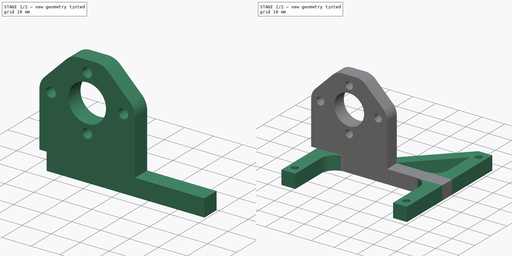
[diagram: build sequence overview — one tinted view per stage of 2, left to right]
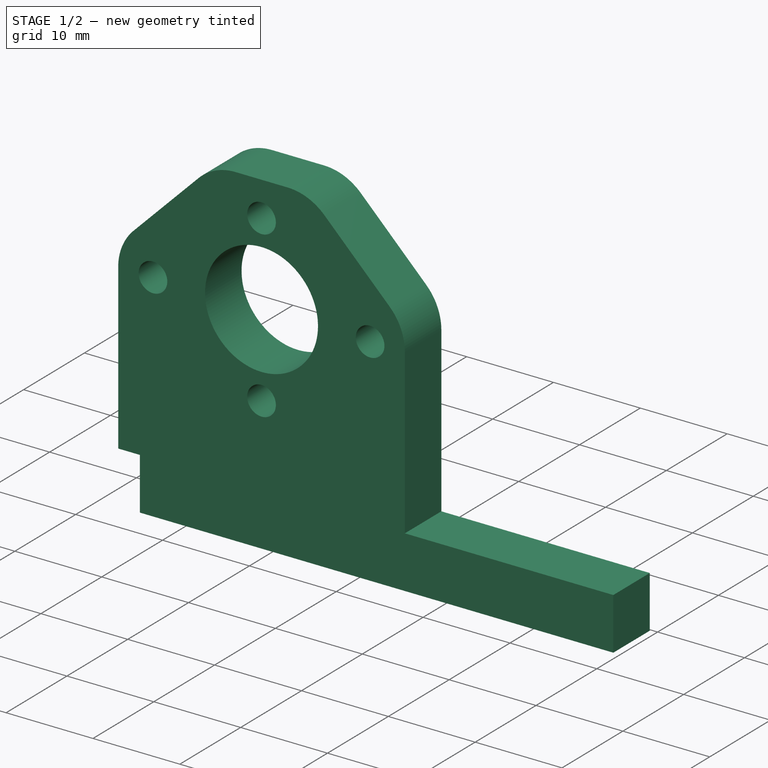
[diagram: stage 1 of 2 — iso view after this stage's code; geometry added in this stage tinted green]
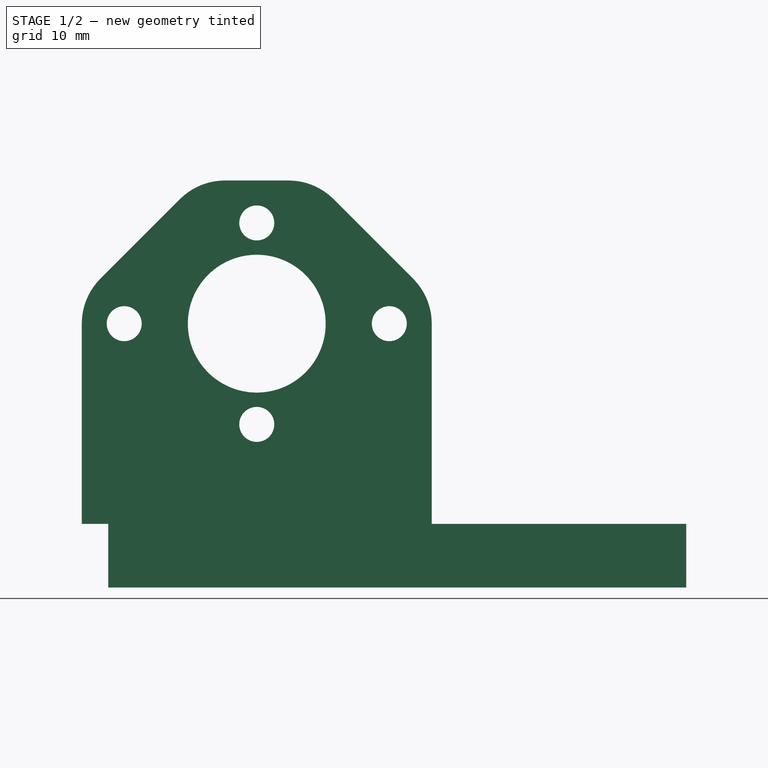
[diagram: stage 1 of 2 — front view after this stage's code; geometry added in this stage tinted green]
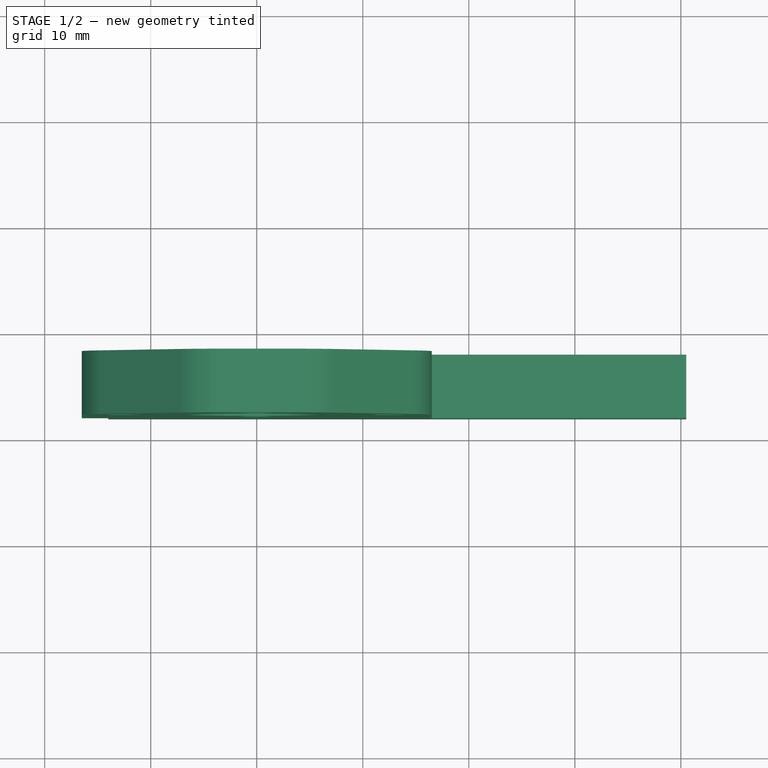
[diagram: stage 1 of 2 — top view after this stage's code; geometry added in this stage tinted green]
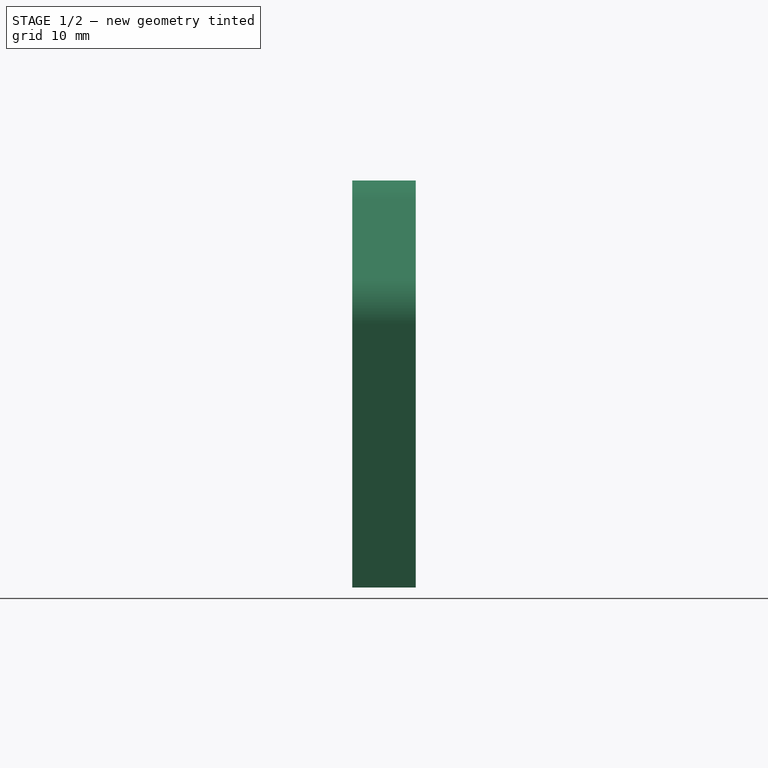
[diagram: stage 1 of 2 — right view after this stage's code; geometry added in this stage tinted green]
FCSTD DOCUMENT  (FreeCAD 0.20R29177 +426 (Git))
Label: motorMountBrushlessR17.50
License: All rights reserved
LicenseURL: http://en.wikipedia.org/wiki/All_rights_reserved
objects: Sketcher::SketchObject×3, PartDesign::Pad×3, PartDesign::Body×2, Spreadsheet::Sheet×1
note: 11 computed .brp shape members not serialized (recipe doc carries the construction recipe); baked Part::Feature solids carry a one-line shape summary decoded from their .brp

FEATURE [Sketcher::SketchObject] Sketch
  AttachmentOffset = pos=(0,24.88,-25) rot=(0,0,1;0rad)
  FullyConstrained = true
  MapMode = 5
  Placement = pos=(0,25,24.88) rot=(1,0,0;1.5708rad)
  Support = -> [XZ_Plane]
  expr: .AttachmentOffset.Base.y = Spreadsheet.transmissionBlockHeight
  expr: .AttachmentOffset.Base.z = -Spreadsheet.supportCylLen
  expr: Constraints[12] = Spreadsheet.motorCenterHoleR
  expr: Constraints[24] = Spreadsheet.transmissionBlockHeight
  expr: Constraints[25] = Spreadsheet.pad
  expr: Constraints[26] = Spreadsheet.underMountScrewHoleFarToSide
  expr: Constraints[28] = Spreadsheet.underMountScrewHoleToSideShortToSide
  expr: Constraints[37] = Spreadsheet.screwToSideFar
  expr: Constraints[38] = Spreadsheet.screwToSideFar
  expr: Constraints[43] = Spreadsheet.pad
  expr: Constraints[46] = Spreadsheet.pad
  expr: Constraints[4] = Spreadsheet.horScrewHoleDist
  expr: Constraints[5] = Spreadsheet.verScrewHoleDist
  expr: Constraints[9] = Spreadsheet.loseScrewHoleR
  sketch-geometry (19):
    g0: Circle CenterX=-12.5 CenterY=0 CenterZ=0 NormalX=0 NormalY=0 NormalZ=1 AngleXU=0 Radius=1.65
    g1: Circle CenterX=12.5 CenterY=0 CenterZ=0 NormalX=0 NormalY=0 NormalZ=1 AngleXU=0 Radius=1.65
    g2: Circle CenterX=0 CenterY=9.5 CenterZ=0 NormalX=0 NormalY=0 NormalZ=1 AngleXU=0 Radius=1.65
    g3: Circle CenterX=0 CenterY=-9.5 CenterZ=0 NormalX=0 NormalY=0 NormalZ=1 AngleXU=0 Radius=1.65
    g4: LineSegment StartX=-3 StartY=13.5 StartZ=0 EndX=3 EndY=13.5 EndZ=0
    g5: LineSegment StartX=16.5 StartY=7e-16 StartZ=0 EndX=16.5 EndY=-18.88 EndZ=0
    g6: LineSegment StartX=-16.5 StartY=-18.88 StartZ=0 EndX=-16.5 EndY=0 EndZ=0
    g7: Circle CenterX=0 CenterY=0 CenterZ=0 NormalX=0 NormalY=0 NormalZ=1 AngleXU=0 Radius=6.5
    g8: LineSegment StartX=-14 StartY=-18.88 StartZ=0 EndX=-16.5 EndY=-18.88 EndZ=0
    g9: LineSegment StartX=40.5 StartY=-18.88 StartZ=0 EndX=40.5 EndY=-24.88 EndZ=0
    g10: LineSegment StartX=40.5 StartY=-24.88 StartZ=0 EndX=-14 EndY=-24.88 EndZ=0
    g11: LineSegment StartX=-14 StartY=-24.88 StartZ=0 EndX=-14 EndY=-18.88 EndZ=0
    g12: LineSegment StartX=16.5 StartY=-18.88 StartZ=0 EndX=40.5 EndY=-18.88 EndZ=0
    g13: LineSegment StartX=-14.7426 StartY=4.24264 StartZ=0 EndX=-7.24264 EndY=11.7426 EndZ=0
    g14: LineSegment StartX=7.24264 StartY=11.7426 StartZ=0 EndX=14.7426 EndY=4.24264 EndZ=0
    g15: ArcOfCircle CenterX=-10.5 CenterY=-7e-16 CenterZ=0 NormalX=0 NormalY=0 NormalZ=1 AngleXU=0 Radius=6 StartAngle=2.35619 EndAngle=3.14159
    g16: ArcOfCircle CenterX=3 CenterY=7.5 CenterZ=0 NormalX=0 NormalY=0 NormalZ=1 AngleXU=0 Radius=6 StartAngle=0.785398 EndAngle=1.5708
    g17: ArcOfCircle CenterX=-3 CenterY=7.5 CenterZ=0 NormalX=0 NormalY=0 NormalZ=1 AngleXU=0 Radius=6 StartAngle=1.5708 EndAngle=2.35619
    g18: ArcOfCircle CenterX=10.5 CenterY=7e-16 CenterZ=0 NormalX=0 NormalY=0 NormalZ=1 AngleXU=0 Radius=6 StartAngle=0 EndAngle=0.785398
  constraints (47):
    c: PointOnObject(g0,g-1)
    c: PointOnObject(g2,g-2)
    c: Symmetric(g1,g0,g-1)
    c: Symmetric(g3,g2,g-1)
    c: DistanceX(g0,g1) = 25
    c: DistanceY(g3,g2) = 19
    c: Equal(g2,g0)
    c: Equal(g2,g3)
    c: Equal(g2,g1)
    c: Radius(g2) = 1.65
    c: Vertical(g5)
    c: Coincident(g7,g-1)
    c: Radius(g7) = 6.5
    c: Coincident(g12,g9)
    c: Coincident(g9,g10)
    c: Coincident(g10,g11)
    c: Coincident(g11,g8)
    c: Horizontal(g8)
    c: Vertical(g9)
    c: Vertical(g11)
    c: Coincident(g8,g6)
    c: Coincident(g12,g5)
    c: Symmetric(g5,g6,g-2)
    c: Horizontal(g12)
    c: DistanceY(g9,g7) = 24.88
    c: DistanceY(g9,g9) = 6
    c: DistanceX(g7,g9) = 40.5
    c: Horizontal(g10)
    c: DistanceX(g10,g7) = 14
    c: Tangent(g13,g15) = 1.5708
    c: Tangent(g6,g15) = 1.5708
    c: Tangent(g4,g16) = 1.5708
    c: Tangent(g14,g16) = 1.5708
    c: Tangent(g4,g17) = 1.5708
    c: Tangent(g13,g17) = 1.5708
    c: Tangent(g14,g18) = 1.5708
    c: Tangent(g5,g18) = 1.5708
    c: DistanceX(g1,g5) = 4
    c: DistanceY(g2,g4) = 4
    c: Symmetric(g4,g4,g-2)
    c: Equal(g17,g16)
    c: Equal(g17,g18)
    c: Equal(g17,g15)
    c: Radius(g17) = 6
    c: Symmetric(g5,g6,g-2)
    c: PointOnObject(g5,g-1)
    c: DistanceX(g4,g4) = 6
FEATURE [Spreadsheet::Sheet] Spreadsheet
  cells = A2=horScrewHoleDist; B2(horScrewHoleDist)=25; A3=verScrewHoleDist; B3(verScrewHoleDist)=19; A4=loseScrewHoleR; B4(loseScrewHoleR)=1.65; A5=motorR; B5(motorR)==35 / 2; A6=motorCenterHoleR; B6(motorCenterHoleR)=6.5; A7=underMountScrewHoleToSideShort; B7(underMountScrewHoleToSideShort)==B9 / 2 + B13; A8=underMountScrewHoleFar; B8(underMountScrewHoleFar)==B9 / 2 + B10 + B9 + B13; A9=transmissionBlockSide; B9(transmissionBlockSide)=18; A10=transmssionBlockCenterSpacing; B10(transmssionBlockCenterSpacing)=8.5; A11=transmissionBlockHeight; B11(transmissionBlockHeight)=24.88; A13=screwToSideTBlock; B13(screwToSideTBlock)=2.5; C13=2 is 1 mm short, 3 is 1 mm too wide.; A14=screwToSideFar; B14(screwToSideFar)==B28 + 1; A16=pad; B16(pad)==B28 * 2; A18=motorConnScrewDist; B18(motorConnScrewDist)=45; A21=underMountScrewHoleToSideShortToSide; B21(underMountScrewHoleToSideShortToSide)==B7 + B13; C21=underMountScrewHoleToSideShort + screwToSide; A22=underMountScrewHoleFarToSide; B22(underMountScrewHoleFarToSide)==B8 + B13; A24=screwTight; B24(screwTight)=1.4; A26=supportCylLen; B26(supportCylLen)=25; A28=screwToSide; B28(screwToSide)=3
FEATURE [PartDesign::Pad] Pad
  Direction = (0,-1,-2e-16)
  Length = 6
  Length2 = 10
  Midplane = true
  Placement = pos=(0,0,0) rot=(1,0,0;1.5708rad)
  Profile = -> Sketch
  ReferenceAxis = -> Sketch [N_Axis]
  Type = 0
  expr: Length = Spreadsheet.pad
FEATURE [PartDesign::Body] Body
  Group = -> [Sketch,Pad,Sketch002,Pad001]
  Origin = -> Origin
  Tip = -> Pad001
FEATURE [Sketcher::SketchObject] Sketch003
  AttachmentOffset = pos=(0,24.88,-25) rot=(0,0,1;0rad)
  FullyConstrained = true
  MapMode = 5
  Placement = pos=(0,25,24.88) rot=(1,0,0;1.5708rad)
  Support = -> [XZ_Plane]
  expr: .AttachmentOffset.Base.y = Spreadsheet.transmissionBlockHeight
  expr: .AttachmentOffset.Base.z = -Spreadsheet.supportCylLen
  expr: Constraints[11] = Spreadsheet.motorCenterHoleR
  expr: Constraints[27] = Spreadsheet.loseScrewHoleR + 2
  expr: Constraints[4] = Spreadsheet.horScrewHoleDist
  expr: Constraints[5] = Spreadsheet.verScrewHoleDist
  expr: Constraints[9] = Spreadsheet.loseScrewHoleR
  sketch-geometry (13):
    g0: Circle CenterX=-12.5 CenterY=0 CenterZ=0 NormalX=0 NormalY=0 NormalZ=1 AngleXU=0 Radius=1.65
    g1: Circle CenterX=12.5 CenterY=0 CenterZ=0 NormalX=0 NormalY=0 NormalZ=1 AngleXU=0 Radius=1.65
    g2: Circle CenterX=0 CenterY=9.5 CenterZ=0 NormalX=0 NormalY=0 NormalZ=1 AngleXU=0 Radius=1.65
    g3: Circle CenterX=0 CenterY=-9.5 CenterZ=0 NormalX=0 NormalY=0 NormalZ=1 AngleXU=0 Radius=1.65
    g4: Circle CenterX=0 CenterY=0 CenterZ=0 NormalX=0 NormalY=0 NormalZ=1 AngleXU=0 Radius=6.5
    g5: LineSegment StartX=-14.7086 StartY=2.90599 StartZ=0 EndX=-2.20855 EndY=12.406 EndZ=0
    g6: LineSegment StartX=2.20855 StartY=12.406 StartZ=0 EndX=14.7086 EndY=2.90599 EndZ=0
    g7: LineSegment StartX=-2.20855 StartY=-12.406 StartZ=0 EndX=-14.7086 EndY=-2.90599 EndZ=0
    g8: LineSegment StartX=2.20855 StartY=-12.406 StartZ=0 EndX=14.7086 EndY=-2.90599 EndZ=0
    g9: ArcOfCircle CenterX=0 CenterY=-9.5 CenterZ=0 NormalX=0 NormalY=0 NormalZ=1 AngleXU=0 Radius=3.65 StartAngle=4.06252 EndAngle=5.36226
    g10: ArcOfCircle CenterX=-12.5 CenterY=0 CenterZ=0 NormalX=0 NormalY=0 NormalZ=1 AngleXU=0 Radius=3.65 StartAngle=2.22067 EndAngle=4.06252
    g11: ArcOfCircle CenterX=12.5 CenterY=0 CenterZ=0 NormalX=0 NormalY=0 NormalZ=1 AngleXU=0 Radius=3.65 StartAngle=5.36226 EndAngle=7.20411
    g12: ArcOfCircle CenterX=0 CenterY=9.5 CenterZ=0 NormalX=0 NormalY=0 NormalZ=1 AngleXU=0 Radius=3.65 StartAngle=0.920926 EndAngle=2.22067
  constraints (28):
    c: PointOnObject(g0,g-1)
    c: PointOnObject(g2,g-2)
    c: Symmetric(g1,g0,g-1)
    c: Symmetric(g3,g2,g-1)
    c: DistanceX(g0,g1) = 25
    c: DistanceY(g3,g2) = 19
    c: Equal(g2,g0)
    c: Equal(g2,g3)
    c: Equal(g2,g1)
    c: Radius(g2) = 1.65
    c: Coincident(g4,g-1)
    c: Radius(g4) = 6.5
    c: Tangent(g7,g9) = 1.5708
    c: Tangent(g8,g9) = -1.5708
    c: Tangent(g7,g10) = 1.5708
    c: Tangent(g5,g10) = 1.5708
    c: Tangent(g6,g11) = 1.5708
    c: Tangent(g8,g11) = -1.5708
    c: Coincident(g11,g1)
    c: Coincident(g10,g0)
    c: Coincident(g9,g3)
    c: Tangent(g5,g12) = 1.5708
    c: Tangent(g6,g12) = 1.5708
    c: Coincident(g12,g2)
    c: Equal(g12,g10)
    c: Equal(g12,g11)
    c: Equal(g12,g9)
    c: Radius(g12) = 3.65
FEATURE [PartDesign::Pad] Pad002
  Direction = (0,-1,-2e-16)
  Length = 3
  Length2 = 10
  Midplane = true
  Placement = pos=(0,0,0) rot=(1,0,0;1.5708rad)
  Profile = -> Sketch003
  ReferenceAxis = -> Sketch003 [N_Axis]
  Type = 0
  expr: Length = 3
FEATURE [PartDesign::Body] Body001
  Group = -> [Sketch003,Pad002]
  Origin = -> Origin001
  Tip = -> Pad002
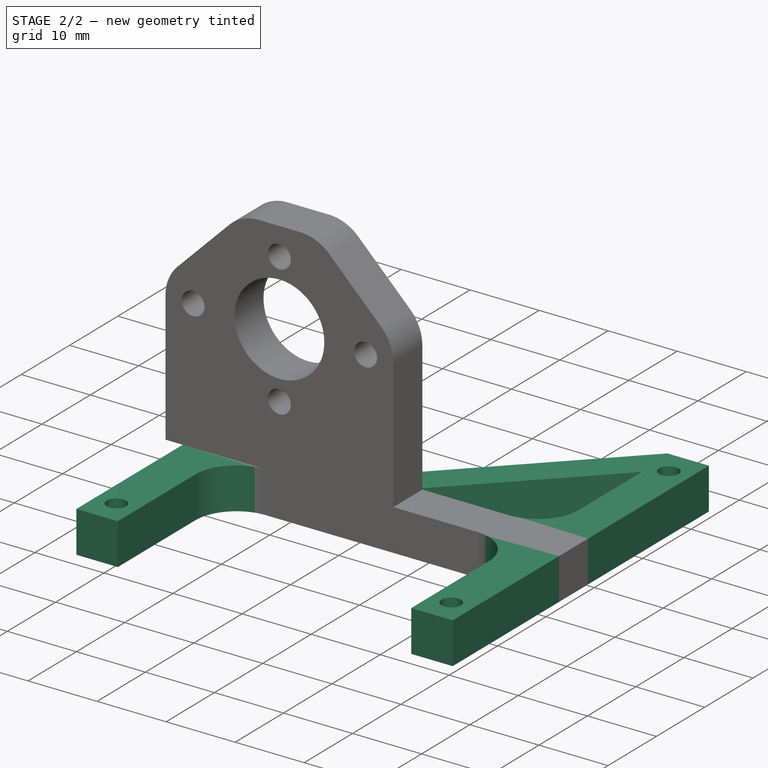
[diagram: stage 2 of 2 — iso view after this stage's code; geometry added in this stage tinted green]
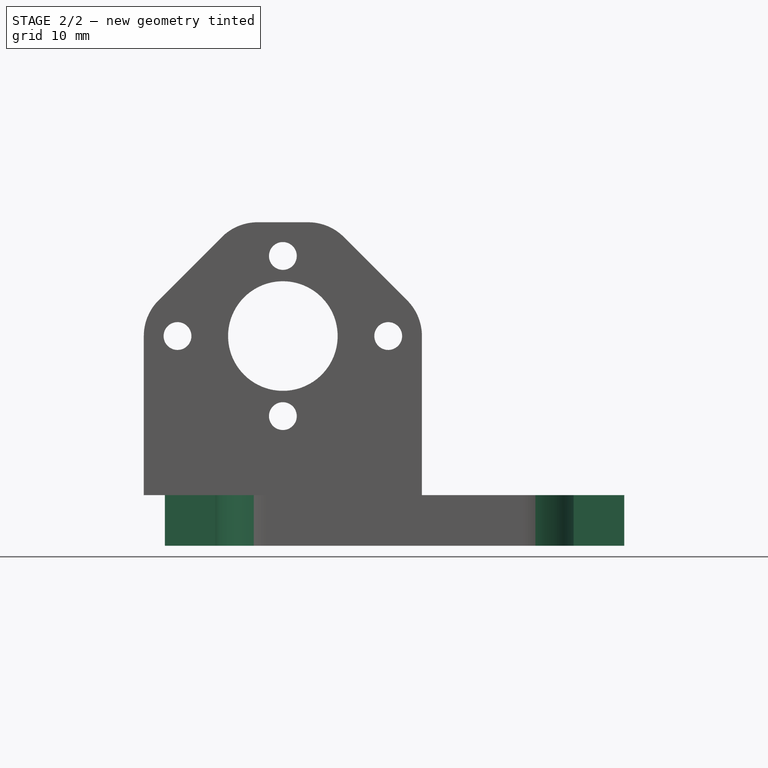
[diagram: stage 2 of 2 — front view after this stage's code; geometry added in this stage tinted green]
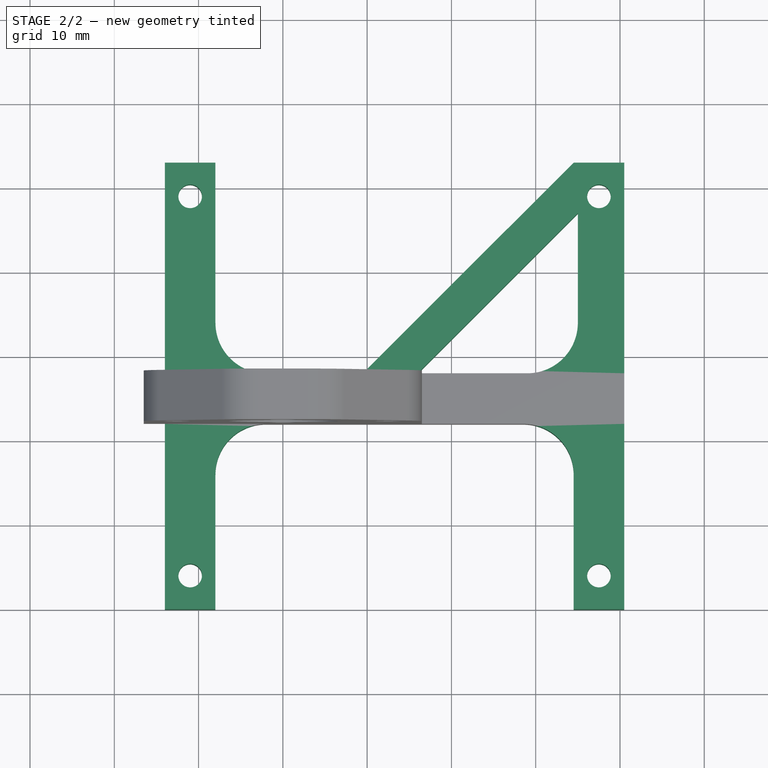
[diagram: stage 2 of 2 — top view after this stage's code; geometry added in this stage tinted green]
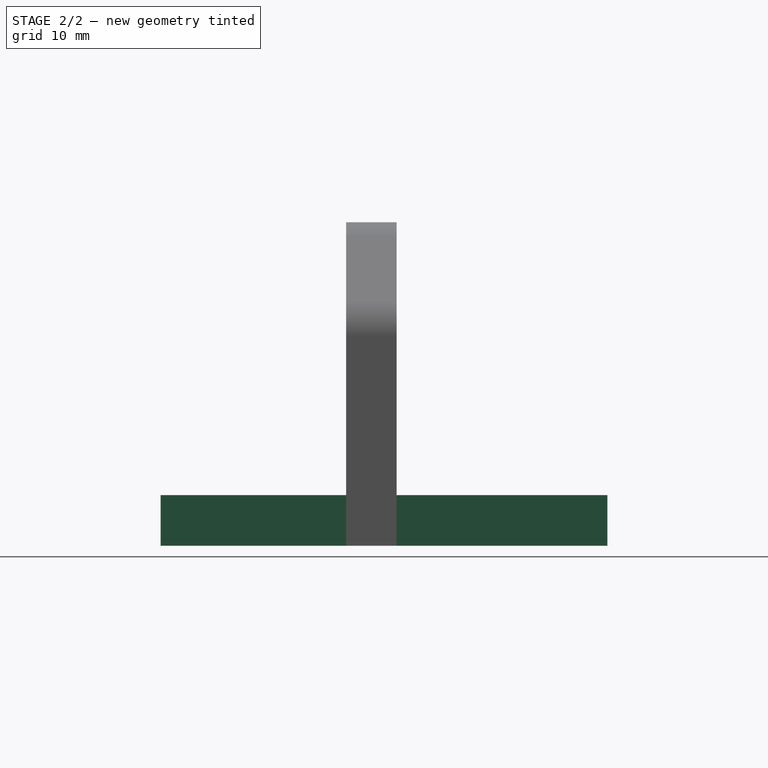
[diagram: stage 2 of 2 — right view after this stage's code; geometry added in this stage tinted green]
FEATURE [Sketcher::SketchObject] Sketch002
  FullyConstrained = true
  MapMode = 5
  Support = -> [XY_Plane]
  expr: Constraints[16] = Spreadsheet.pad
  expr: Constraints[17] = Spreadsheet.motorConnScrewDist + Spreadsheet.screwToSideFar * 2
  expr: Constraints[19] = Spreadsheet.screwTight
  expr: Constraints[20] = Spreadsheet.screwToSide
  expr: Constraints[21] = Spreadsheet.screwToSideFar
  expr: Constraints[22] = Spreadsheet.screwToSideFar
  expr: Constraints[25] = Spreadsheet.underMountScrewHoleToSideShortToSide
  expr: Constraints[26] = Spreadsheet.underMountScrewHoleFarToSide
  expr: Constraints[27] = Spreadsheet.screwToSide
  expr: Constraints[37] = Spreadsheet.screwToSideFar
  expr: Constraints[42] = Spreadsheet.motorConnScrewDist + Spreadsheet.screwToSideFar * 2
  expr: Constraints[43] = Spreadsheet.pad
  expr: Constraints[44] = Spreadsheet.pad
  expr: Constraints[57] = Spreadsheet.pad
  expr: Constraints[58] = Spreadsheet.pad
  expr: Constraints[59] = Spreadsheet.supportCylLen - Spreadsheet.pad / 2
  expr: Constraints[63] = Spreadsheet.pad
  expr: Constraints[67] = Spreadsheet.pad
  expr: Constraints[69] = Spreadsheet.screwToSideTBlock
  sketch-geometry (26):
    g0: LineSegment StartX=34.5 StartY=0 StartZ=0 EndX=40.5 EndY=0 EndZ=0
    g1: LineSegment StartX=40.5 StartY=0 StartZ=0 EndX=40.5 EndY=53 EndZ=0
    g2: LineSegment StartX=40.5 StartY=53 StartZ=0 EndX=34.5 EndY=53 EndZ=0
    g3: LineSegment StartX=35 StartY=47 StartZ=0 EndX=35 EndY=34 EndZ=0
    g4: LineSegment StartX=-8 StartY=0 StartZ=0 EndX=-14 EndY=0 EndZ=0
    g5: LineSegment StartX=-14 StartY=0 StartZ=0 EndX=-14 EndY=53 EndZ=0
    g6: LineSegment StartX=-14 StartY=53 StartZ=0 EndX=-8 EndY=53 EndZ=0
    g7: LineSegment StartX=-8 StartY=53 StartZ=0 EndX=-8 EndY=34 EndZ=0
    g8: Circle CenterX=-11 CenterY=49 CenterZ=0 NormalX=0 NormalY=0 NormalZ=1 AngleXU=0 Radius=1.4
    g9: Circle CenterX=37.5 CenterY=49 CenterZ=0 NormalX=0 NormalY=0 NormalZ=1 AngleXU=0 Radius=1.4
    g10: Circle CenterX=-11 CenterY=4 CenterZ=0 NormalX=0 NormalY=0 NormalZ=1 AngleXU=0 Radius=1.4
    g11: Circle CenterX=37.5 CenterY=4 CenterZ=0 NormalX=0 NormalY=0 NormalZ=1 AngleXU=0 Radius=1.4
    g12: LineSegment StartX=37.5 StartY=49 StartZ=0 EndX=37.5 EndY=4 EndZ=0
    g13: LineSegment StartX=37.5 StartY=4 StartZ=0 EndX=-11 EndY=4 EndZ=0
    g14: LineSegment StartX=-11 StartY=4 StartZ=0 EndX=-11 EndY=49 EndZ=0
    g15: LineSegment StartX=-2 StartY=28 StartZ=0 EndX=9.5 EndY=28 EndZ=0
    g16: LineSegment StartX=28.5 StartY=22 StartZ=0 EndX=-2 EndY=22 EndZ=0
    g17: LineSegment StartX=-8 StartY=16 StartZ=0 EndX=-8 EndY=0 EndZ=0
    g18: LineSegment StartX=34.5 StartY=16 StartZ=0 EndX=34.5 EndY=0 EndZ=0
    g19: ArcOfCircle CenterX=-2 CenterY=16 CenterZ=0 NormalX=0 NormalY=0 NormalZ=1 AngleXU=0 Radius=6 StartAngle=1.5708 EndAngle=3.14159
    g20: ArcOfCircle CenterX=28.5 CenterY=16 CenterZ=0 NormalX=0 NormalY=0 NormalZ=1 AngleXU=0 Radius=6 StartAngle=-4.26e-14 EndAngle=1.5708
    g21: ArcOfCircle CenterX=29 CenterY=34 CenterZ=0 NormalX=0 NormalY=0 NormalZ=1 AngleXU=0 Radius=6 StartAngle=4.71239 EndAngle=6.28319
    g22: ArcOfCircle CenterX=-2 CenterY=34 CenterZ=0 NormalX=0 NormalY=0 NormalZ=1 AngleXU=0 Radius=6 StartAngle=3.14159 EndAngle=4.71239
    g23: LineSegment StartX=9.5 StartY=28 StartZ=0 EndX=34.5 EndY=53 EndZ=0
    g24: LineSegment StartX=16 StartY=28 StartZ=0 EndX=35 EndY=47 EndZ=0
    g25: LineSegment StartX=16 StartY=28 StartZ=0 EndX=29 EndY=28 EndZ=0
  constraints (71):
    c: Coincident(g0,g1)
    c: Coincident(g1,g2)
    c: Coincident(g18,g0)
    c: Horizontal(g0)
    c: Horizontal(g2)
    c: Vertical(g1)
    c: Vertical(g3)
    c: Coincident(g4,g5)
    c: Coincident(g5,g6)
    c: Coincident(g6,g7)
    c: Coincident(g17,g4)
    c: Horizontal(g4)
    c: Horizontal(g6)
    c: Vertical(g5)
    c: Vertical(g7)
    c: Equal(g4,g0)
    c: DistanceX(g2,g2) = 6
    c: DistanceY(g-1,g1) = 53
    c: Equal(g9,g8)
    c: Radius(g9) = 1.4
    c: DistanceX(g2,g9) = 3
    c: DistanceY(g9,g1) = 4
    c: DistanceY(g8,g5) = 4
    c: PointOnObject(g4,g-1)
    c: PointOnObject(g0,g-1)
    c: DistanceX(g4,g-1) = 14
    c: DistanceX(g-1,g0) = 40.5
    c: DistanceX(g5,g8) = 3
    c: Coincident(g12,g9)
    c: Coincident(g12,g11)
    c: Vertical(g12)
    c: Coincident(g13,g11)
    c: Coincident(g13,g10)
    c: Horizontal(g13)
    c: Coincident(g14,g10)
    c: Coincident(g14,g8)
    c: Vertical(g14)
    c: DistanceY(g-1,g11) = 4
    c: Equal(g10,g11)
    c: Equal(g11,g8)
    c: Horizontal(g15)
    c: Horizontal(g16)
    c: DistanceY(g4,g5) = 53
    c: DistanceX(g6,g6) = 6
    c: DistanceX(g0,g0) = 6
    c: Vertical(g18)
    c: Vertical(g17)
    c: Tangent(g16,g19) = -1.5708
    c: Tangent(g17,g19) = -1.5708
    c: Tangent(g16,g20) = -1.5708
    c: Tangent(g18,g20) = 1.5708
    c: Tangent(g3,g21) = 1.5708
    c: Tangent(g15,g22) = -1.5708
    c: Tangent(g7,g22) = -1.5708
    c: Equal(g22,g19)
    c: Equal(g22,g21)
    c: Equal(g22,g20)
    c: Radius(g22) = 6
    c: DistanceY(g16,g25) = 6
    c: DistanceY(g0,g16) = 22
    c: Parallel(g23,g24)
    c: Angle(g-1,g24) = 0.785398
    c: Coincident(g23,g2)
    c: DistanceY(g24,g2) = 6
    c: Coincident(g3,g24)
    c: Coincident(g15,g23)
    c: Coincident(g25,g24)
    c: DistanceY(g16,g15) = 6
    c: Horizontal(g25)
    c: DistanceX(g3,g9) = 2.5
    c: Tangent(g25,g21) = -1.5708
FEATURE [PartDesign::Pad] Pad001
  BaseFeature = -> Pad
  Direction = (0,0,1)
  Length = 6
  Length2 = 10
  Placement = pos=(0,0,0) rot=(1,0,0;1.5708rad)
  Profile = -> Sketch002
  ReferenceAxis = -> Sketch002 [N_Axis]
  Type = 0
  expr: Length = Spreadsheet.pad
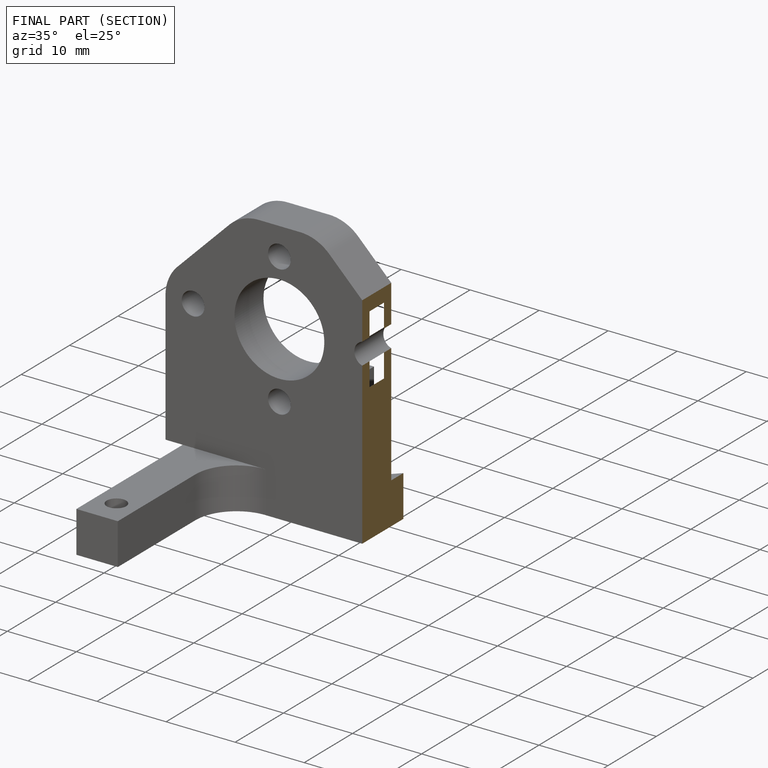
[diagram: finished part — half-section view (interior)]
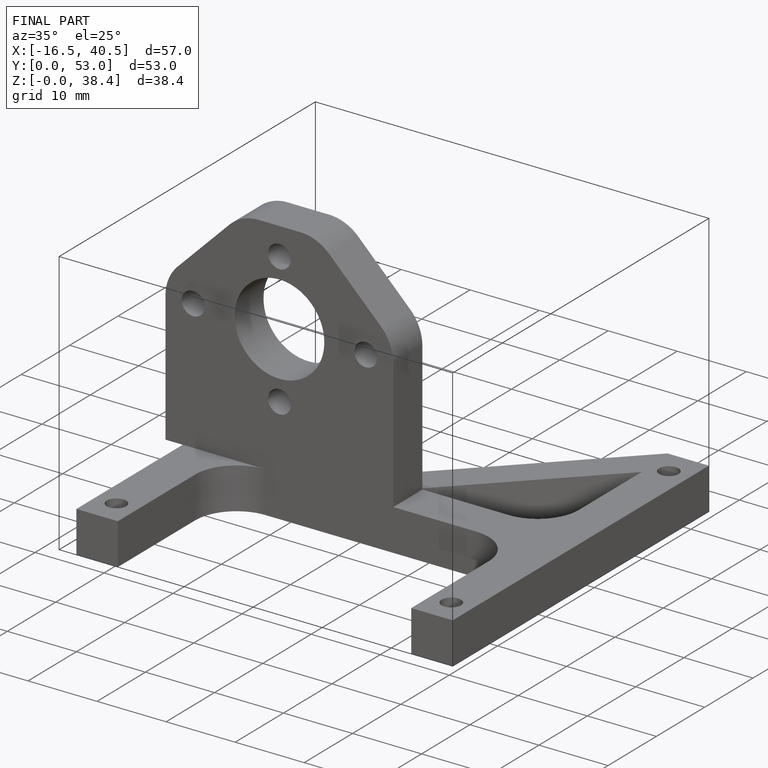
[diagram: finished part — iso view with bounding-box wireframe]
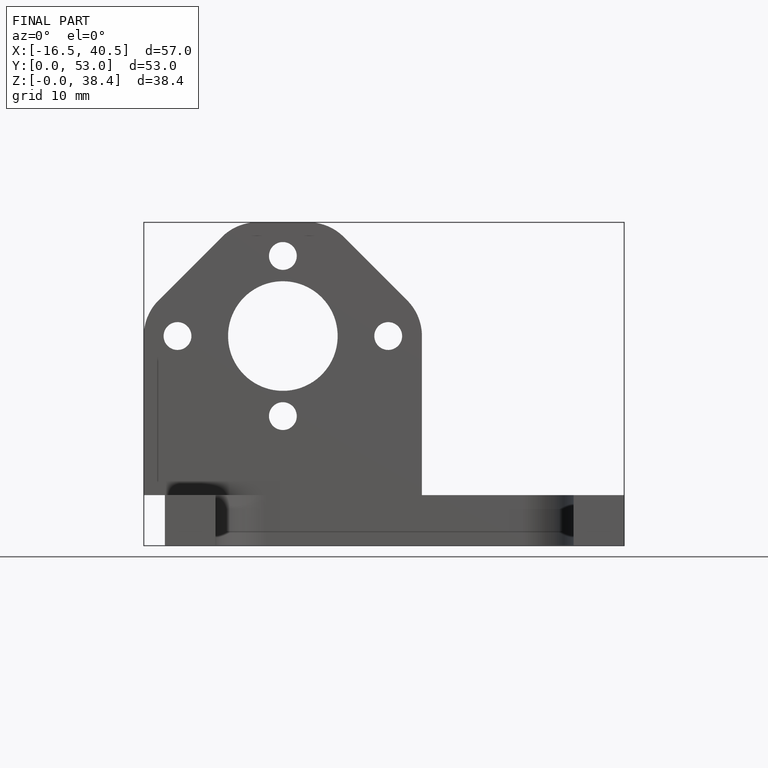
[diagram: finished part — front view with bounding-box wireframe]
